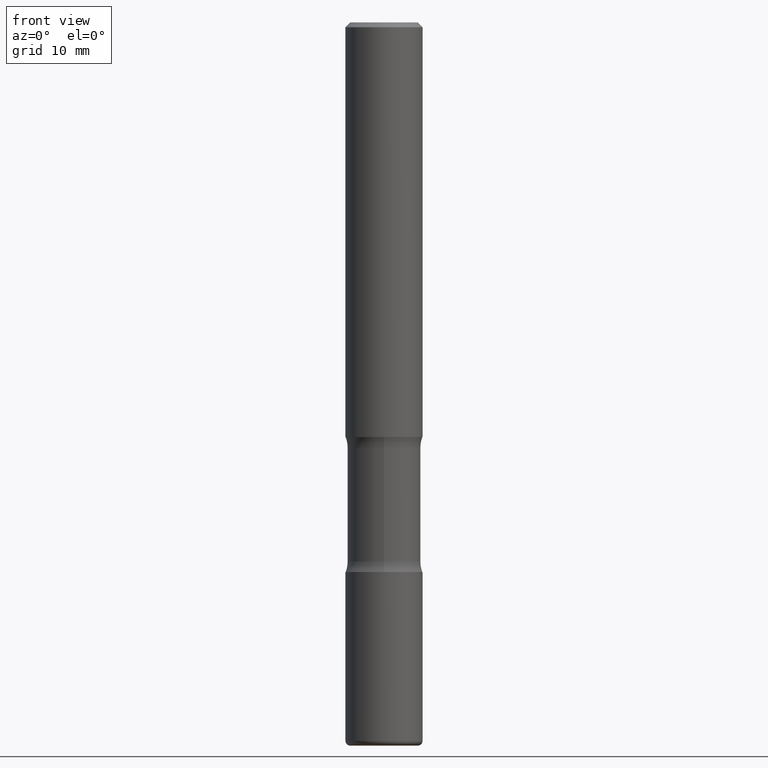
[diagram: clean part render]
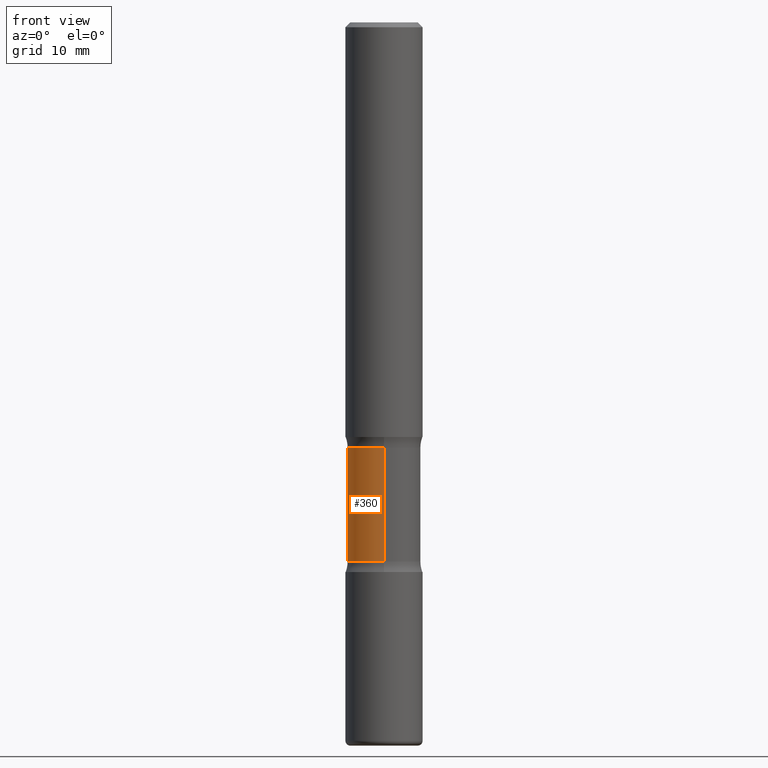
[diagram: same view with one face highlighted and labeled with its STEP entity id]
A machine part, front view. The second image highlights one B-rep face of the part: STEP entity #360.
In plain terms, the highlighted cylindrical surface (partial cylindrical patch) has radius 3.7998 mm, axis along (0, -0, -1).
Its self-contained STEP definition (entity closure, byte-faithful):
#32 = EDGE_CURVE ( 'NONE', #207, #486, #376, .T. ) ;
#50 = LINE ( 'NONE', #554, #271 ) ;
#86 = DIRECTION ( 'NONE',  ( 2.131257620516683255E-29, -3.941449640510431903E-15, -1.000000000000000000 ) ) ;
#87 = DIRECTION ( 'NONE',  ( 2.131257620516683255E-29, -3.941449640510431903E-15, -1.000000000000000000 ) ) ;
#100 = ORIENTED_EDGE ( 'NONE', *, *, #251, .F. ) ;
#106 = DIRECTION ( 'NONE',  ( 2.131257620516683255E-29, -3.941449640510431903E-15, -1.000000000000000000 ) ) ;
#118 = EDGE_CURVE ( 'NONE', #229, #486, #217, .T. ) ;
#130 = CYLINDRICAL_SURFACE ( 'NONE', #156, 0.1495999999999998442 ) ;
#156 = AXIS2_PLACEMENT_3D ( 'NONE', #288, #86, #423 ) ;
#168 = DIRECTION ( 'NONE',  ( 2.131257620516683255E-29, -3.941449640510431903E-15, -1.000000000000000000 ) ) ;
#179 = CARTESIAN_POINT ( 'NONE',  ( -1.053429467557764082E-15, -0.1496000000000076158, -2.200366831809253743 ) ) ;
#203 = ORIENTED_EDGE ( 'NONE', *, *, #118, .T. ) ;
#207 = VERTEX_POINT ( 'NONE', #179 ) ;
#217 = LINE ( 'NONE', #306, #226 ) ;
#226 = VECTOR ( 'NONE', #469, 39.37007874015748143 ) ;
#229 = VERTEX_POINT ( 'NONE', #373 ) ;
#251 = EDGE_CURVE ( 'NONE', #362, #207, #50, .T. ) ;
#266 = DIRECTION ( 'NONE',  ( 6.982962677686266711E-15, 1.000000000000000000, -3.652203200085919456E-15 ) ) ;
#271 = VECTOR ( 'NONE', #168, 39.37007874015748143 ) ;
#288 = CARTESIAN_POINT ( 'NONE',  ( 6.998298823620237737E-29, -1.062853863272764355E-14, -2.952799999999999869 ) ) ;
#306 = CARTESIAN_POINT ( 'NONE',  ( 1.044651216581934232E-15, 0.1495999999999892416, -2.952800000000000313 ) ) ;
#310 = CARTESIAN_POINT ( 'NONE',  ( 1.044651216581919046E-15, 0.1495999999999922947, -2.200366831809255075 ) ) ;
#332 = CARTESIAN_POINT ( 'NONE',  ( 5.394669899984199995E-29, -7.662861192454106657E-15, -2.200366831809254631 ) ) ;
#360 = ADVANCED_FACE ( 'NONE', ( #468 ), #130, .T. ) ;
#362 = VERTEX_POINT ( 'NONE', #458 ) ;
#373 = CARTESIAN_POINT ( 'NONE',  ( 1.044651216581907805E-15, 0.1495999999999939323, -1.736733168190745635 ) ) ;
#376 = CIRCLE ( 'NONE', #533, 0.1495999999999999552 ) ;
#422 = EDGE_LOOP ( 'NONE', ( #100, #529, #203, #492 ) ) ;
#423 = DIRECTION ( 'NONE',  ( 6.982962677686265133E-15, 1.000000000000000000, -3.652203200085917089E-15 ) ) ;
#439 = AXIS2_PLACEMENT_3D ( 'NONE', #476, #106, #266 ) ;
#458 = CARTESIAN_POINT ( 'NONE',  ( -1.053429467557773351E-15, -0.1496000000000056174, -1.736733168190744525 ) ) ;
#468 = FACE_OUTER_BOUND ( 'NONE', #422, .T. ) ;
#469 = DIRECTION ( 'NONE',  ( 2.131257620516683255E-29, -3.941449640510431903E-15, -1.000000000000000000 ) ) ;
#476 = CARTESIAN_POINT ( 'NONE',  ( 4.406547121269184241E-29, -5.835472455656399811E-15, -1.736733168190745191 ) ) ;
#486 = VERTEX_POINT ( 'NONE', #310 ) ;
#492 = ORIENTED_EDGE ( 'NONE', *, *, #32, .F. ) ;
#503 = EDGE_CURVE ( 'NONE', #362, #229, #558, .T. ) ;
#529 = ORIENTED_EDGE ( 'NONE', *, *, #503, .T. ) ;
#533 = AXIS2_PLACEMENT_3D ( 'NONE', #332, #87, #547 ) ;
#547 = DIRECTION ( 'NONE',  ( 6.982962677686265133E-15, 1.000000000000000000, -3.652203200085914722E-15 ) ) ;
#554 = CARTESIAN_POINT ( 'NONE',  ( -1.026330500466550053E-15, -0.1496000000000104746, -2.952799999999998981 ) ) ;
#558 = CIRCLE ( 'NONE', #439, 0.1495999999999997609 ) ;